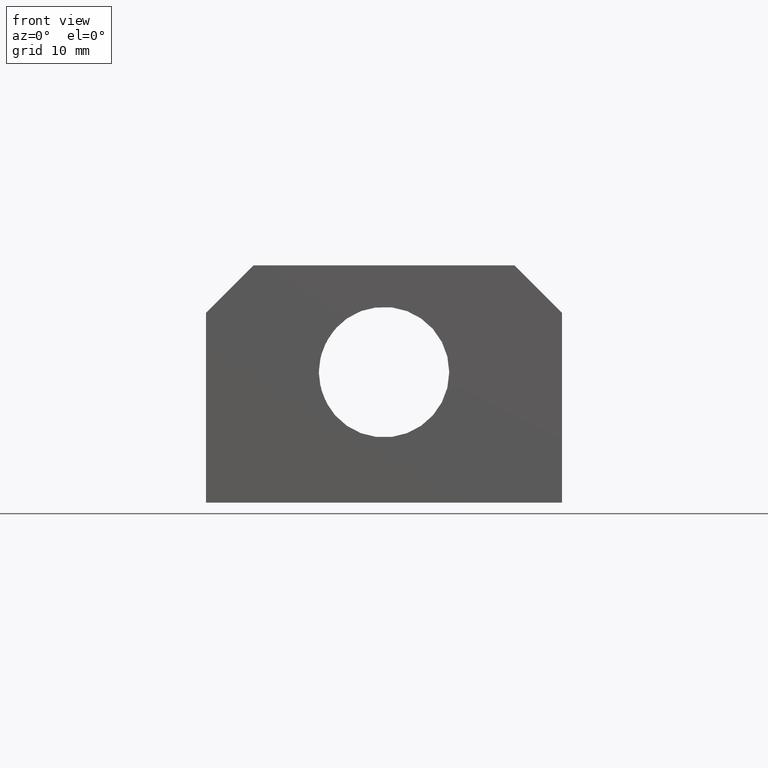
[diagram: clean part render]
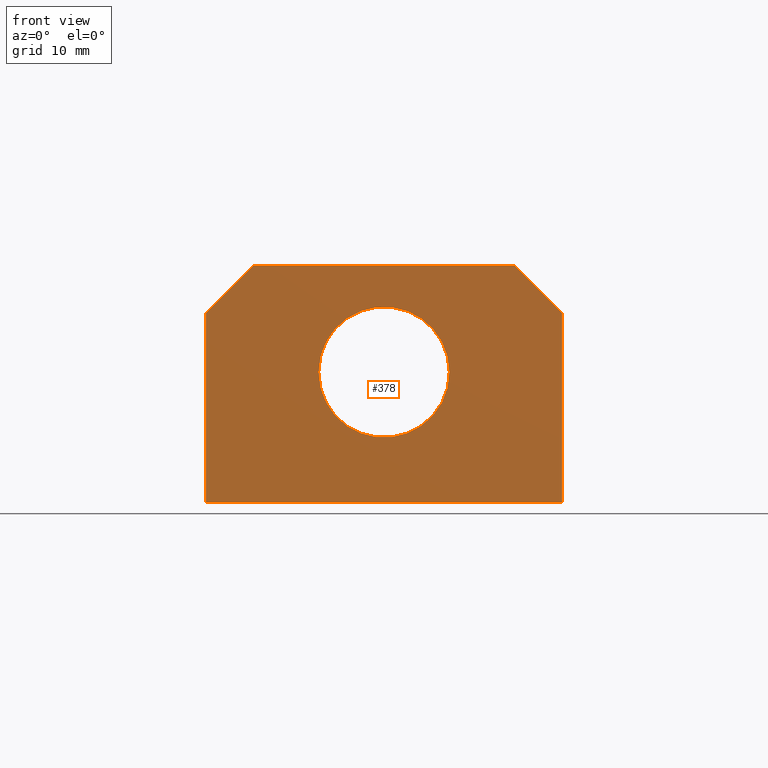
[diagram: same view with one face highlighted and labeled with its STEP entity id]
A machine part, front view. The second image highlights one B-rep face of the part: STEP entity #378.
In plain terms, the highlighted planar face has unit normal (0, -1, -0).
Its self-contained STEP definition (entity closure, byte-faithful):
#17=CARTESIAN_POINT('',(14.999999999939746,-50.000000412953952,15.999998709457714));
#18=VERTEX_POINT('',#17);
#25=CARTESIAN_POINT('',(14.999999999940201,-49.999999999998444,-0.000001290478480));
#26=VERTEX_POINT('',#25);
#27=CARTESIAN_POINT('',(14.999999999940201,-49.999999999998444,-0.000001290478480));
#28=DIRECTION('',(-2.842171E-014,-0.000000025809719,1.000000000000000));
#29=VECTOR('',#28,15.999999999936197);
#30=LINE('',#27,#29);
#31=EDGE_CURVE('',#26,#18,#30,.T.);
#55=CARTESIAN_POINT('',(10.999999999955662,-50.000000516189836,19.999998709442266));
#56=VERTEX_POINT('',#55);
#63=CARTESIAN_POINT('',(14.999999999939746,-50.000000412953952,15.999998709457714));
#64=DIRECTION('',(-0.707106781186588,-0.000000018250172,0.707106781186507));
#65=VECTOR('',#64,5.656854249469549);
#66=LINE('',#63,#65);
#67=EDGE_CURVE('',#18,#56,#66,.T.);
#119=CARTESIAN_POINT('',(-10.999999999956572,-50.000000516189836,19.999998709442266));
#120=VERTEX_POINT('',#119);
#127=CARTESIAN_POINT('',(10.999999999955662,-50.000000516189836,19.999998709442266));
#128=DIRECTION('',(-1.0,0.0,0.0));
#129=VECTOR('',#128,21.999999999912234);
#130=LINE('',#127,#129);
#131=EDGE_CURVE('',#56,#120,#130,.T.);
#182=CARTESIAN_POINT('',(-14.999999999940201,-50.000000412953952,15.999998709457714));
#183=VERTEX_POINT('',#182);
#190=CARTESIAN_POINT('',(-10.999999999956572,-50.000000516189836,19.999998709442266));
#191=DIRECTION('',(-0.707106781186467,0.000000018249698,-0.707106781186628));
#192=VECTOR('',#191,5.656854249469873);
#193=LINE('',#190,#192);
#194=EDGE_CURVE('',#120,#183,#193,.T.);
#212=CARTESIAN_POINT('',(-14.999999999940201,-50.000000000001521,-0.000001290478480));
#213=VERTEX_POINT('',#212);
#220=CARTESIAN_POINT('',(-14.999999999940201,-50.000000412953952,15.999998709457714));
#221=DIRECTION('',(0.0,0.000000025809527,-1.000000000000000));
#222=VECTOR('',#221,15.999999999936200);
#223=LINE('',#220,#222);
#224=EDGE_CURVE('',#183,#213,#223,.T.);
#259=CARTESIAN_POINT('',(-14.999999999940201,-50.000000000001521,-0.000001290478480));
#260=DIRECTION('',(1.0,1.025550E-013,5.921635E-017));
#261=VECTOR('',#260,29.999999999880401);
#262=LINE('',#259,#261);
#263=EDGE_CURVE('',#213,#26,#262,.T.);
#345=CARTESIAN_POINT('',(-18.000004730952014,-49.999999948379184,-2.000006021500880));
#346=DIRECTION('',(0.0,-1.000000000000000,-0.000000025809570));
#347=DIRECTION('',(1.0,0.0,0.0));
#348=AXIS2_PLACEMENT_3D('',#345,#346,#347);
#349=PLANE('',#348);
#350=ORIENTED_EDGE('',*,*,#31,.T.);
#351=ORIENTED_EDGE('',*,*,#67,.T.);
#352=ORIENTED_EDGE('',*,*,#131,.T.);
#353=ORIENTED_EDGE('',*,*,#194,.T.);
#354=ORIENTED_EDGE('',*,*,#224,.T.);
#355=ORIENTED_EDGE('',*,*,#263,.T.);
#356=EDGE_LOOP('',(#350,#351,#352,#353,#354,#355));
#357=FACE_OUTER_BOUND('',#356,.T.);
#358=CARTESIAN_POINT('',(-5.500000000000227,-50.000000283903717,10.999998709477737));
#359=VERTEX_POINT('',#358);
#360=CARTESIAN_POINT('',(5.499999999999773,-50.000000283903709,10.999998709477737));
#361=VERTEX_POINT('',#360);
#362=CARTESIAN_POINT('',(-2.273737E-013,-50.000000283903717,10.999998709477737));
#363=DIRECTION('',(0.0,-1.000000000000000,-0.000000025809570));
#364=DIRECTION('',(1.0,0.0,0.0));
#365=AXIS2_PLACEMENT_3D('',#362,#363,#364);
#366=CIRCLE('',#365,5.500000000000000);
#367=EDGE_CURVE('',#359,#361,#366,.T.);
#368=ORIENTED_EDGE('',*,*,#367,.F.);
#369=CARTESIAN_POINT('',(-2.273737E-013,-50.000000283903717,10.999998709477737));
#370=DIRECTION('',(0.0,-1.000000000000000,-0.000000025809570));
#371=DIRECTION('',(1.0,0.0,0.0));
#372=AXIS2_PLACEMENT_3D('',#369,#370,#371);
#373=CIRCLE('',#372,5.500000000000000);
#374=EDGE_CURVE('',#361,#359,#373,.T.);
#375=ORIENTED_EDGE('',*,*,#374,.F.);
#376=EDGE_LOOP('',(#368,#375));
#377=FACE_BOUND('',#376,.T.);
#378=ADVANCED_FACE('',(#357,#377),#349,.T.);